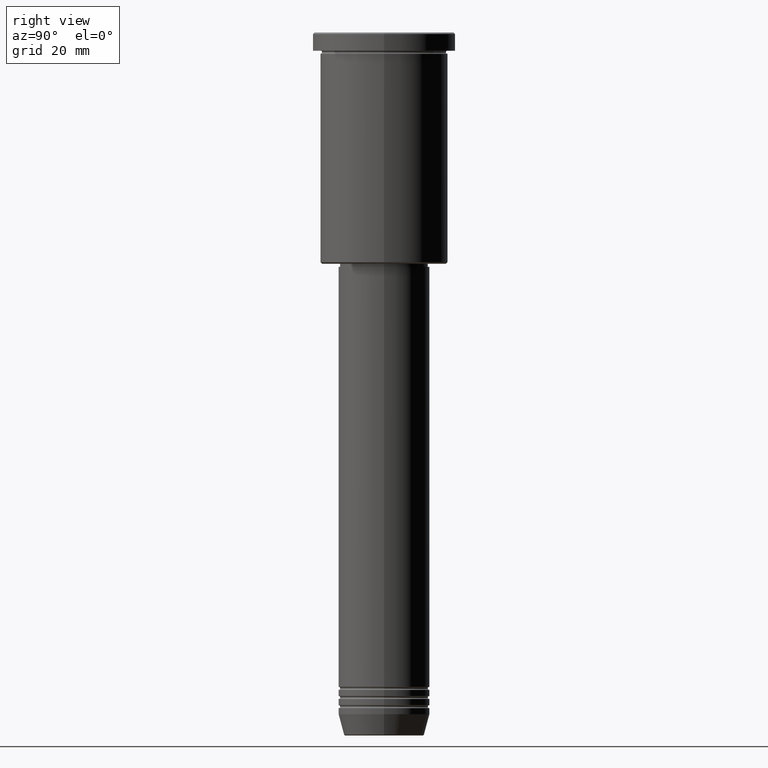
[diagram: clean part render]
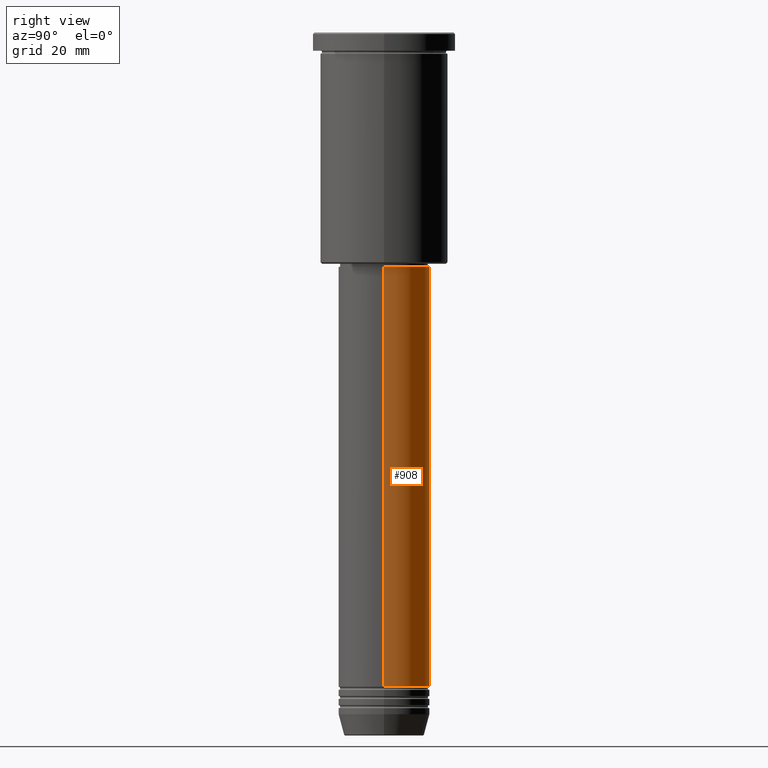
[diagram: same view with one face highlighted and labeled with its STEP entity id]
A machine part, right view. The second image highlights one B-rep face of the part: STEP entity #908.
In plain terms, the highlighted cylindrical surface (partial cylindrical patch) has radius 15 mm, axis along (-0, -0, 1).
Its self-contained STEP definition (entity closure, byte-faithful):
#27 = VERTEX_POINT ( 'NONE', #234 ) ;
#28 = CARTESIAN_POINT ( 'NONE',  ( 0.000000000000000000, 0.000000000000000000, -214.9999999999999716 ) ) ;
#59 = DIRECTION ( 'NONE',  ( -0.000000000000000000, -0.000000000000000000, 1.000000000000000000 ) ) ;
#76 = LINE ( 'NONE', #331, #844 ) ;
#122 = LINE ( 'NONE', #745, #719 ) ;
#133 = DIRECTION ( 'NONE',  ( -0.000000000000000000, -0.000000000000000000, 1.000000000000000000 ) ) ;
#159 = CARTESIAN_POINT ( 'NONE',  ( 0.000000000000000000, 0.000000000000000000, 0.000000000000000000 ) ) ;
#204 = FACE_OUTER_BOUND ( 'NONE', #450, .T. ) ;
#234 = CARTESIAN_POINT ( 'NONE',  ( 15.00000000000000000, 0.000000000000000000, -214.9999999999999716 ) ) ;
#249 = CARTESIAN_POINT ( 'NONE',  ( -15.00000000000000000, 1.836970198721029589E-15, -214.9999999999999716 ) ) ;
#273 = ORIENTED_EDGE ( 'NONE', *, *, #726, .T. ) ;
#306 = AXIS2_PLACEMENT_3D ( 'NONE', #28, #59, #714 ) ;
#331 = CARTESIAN_POINT ( 'NONE',  ( -15.00000000000000000, 1.836970198721029589E-15, 0.000000000000000000 ) ) ;
#381 = CARTESIAN_POINT ( 'NONE',  ( -15.00000000000000000, 1.836970198721029589E-15, -76.99999999999998579 ) ) ;
#400 = AXIS2_PLACEMENT_3D ( 'NONE', #944, #133, #1144 ) ;
#450 = EDGE_LOOP ( 'NONE', ( #751, #273, #931, #901 ) ) ;
#528 = EDGE_CURVE ( 'NONE', #696, #894, #974, .T. ) ;
#641 = DIRECTION ( 'NONE',  ( 1.000000000000000000, 0.000000000000000000, 0.000000000000000000 ) ) ;
#687 = DIRECTION ( 'NONE',  ( -0.000000000000000000, -0.000000000000000000, 1.000000000000000000 ) ) ;
#696 = VERTEX_POINT ( 'NONE', #1128 ) ;
#714 = DIRECTION ( 'NONE',  ( 1.000000000000000000, 0.000000000000000000, 0.000000000000000000 ) ) ;
#719 = VECTOR ( 'NONE', #757, 1000.000000000000000 ) ;
#726 = EDGE_CURVE ( 'NONE', #982, #894, #76, .T. ) ;
#745 = CARTESIAN_POINT ( 'NONE',  ( 15.00000000000000000, 0.000000000000000000, 0.000000000000000000 ) ) ;
#751 = ORIENTED_EDGE ( 'NONE', *, *, #973, .T. ) ;
#757 = DIRECTION ( 'NONE',  ( -0.000000000000000000, -0.000000000000000000, 1.000000000000000000 ) ) ;
#769 = EDGE_CURVE ( 'NONE', #27, #696, #122, .T. ) ;
#826 = DIRECTION ( 'NONE',  ( -0.000000000000000000, -0.000000000000000000, 1.000000000000000000 ) ) ;
#844 = VECTOR ( 'NONE', #687, 1000.000000000000000 ) ;
#891 = CIRCLE ( 'NONE', #306, 15.00000000000000000 ) ;
#894 = VERTEX_POINT ( 'NONE', #381 ) ;
#901 = ORIENTED_EDGE ( 'NONE', *, *, #769, .F. ) ;
#908 = ADVANCED_FACE ( 'NONE', ( #204 ), #1073, .T. ) ;
#929 = AXIS2_PLACEMENT_3D ( 'NONE', #159, #826, #641 ) ;
#931 = ORIENTED_EDGE ( 'NONE', *, *, #528, .F. ) ;
#944 = CARTESIAN_POINT ( 'NONE',  ( 0.000000000000000000, 0.000000000000000000, -76.99999999999998579 ) ) ;
#973 = EDGE_CURVE ( 'NONE', #27, #982, #891, .T. ) ;
#974 = CIRCLE ( 'NONE', #400, 15.00000000000000000 ) ;
#982 = VERTEX_POINT ( 'NONE', #249 ) ;
#1073 = CYLINDRICAL_SURFACE ( 'NONE', #929, 15.00000000000000000 ) ;
#1128 = CARTESIAN_POINT ( 'NONE',  ( 15.00000000000000000, 0.000000000000000000, -76.99999999999998579 ) ) ;
#1144 = DIRECTION ( 'NONE',  ( 1.000000000000000000, 0.000000000000000000, 0.000000000000000000 ) ) ;